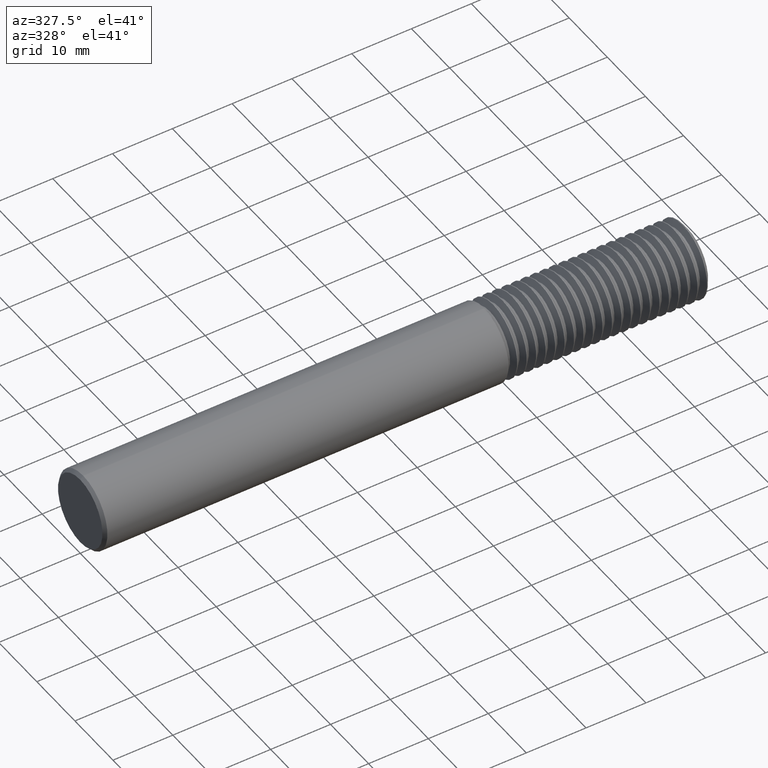
[diagram: clean part render]
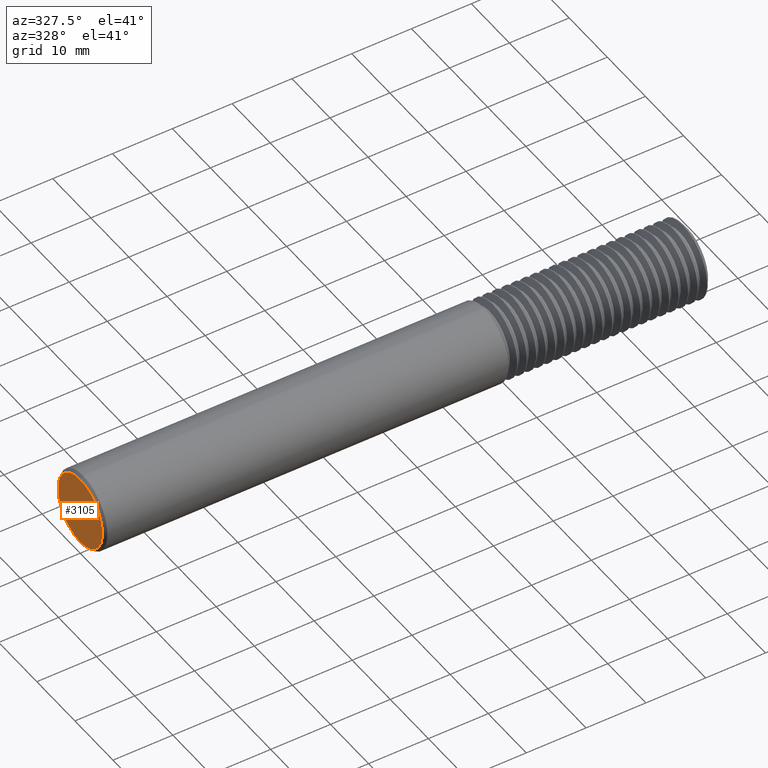
[diagram: same view with one face highlighted and labeled with its STEP entity id]
A machine part, auxiliary view. The second image highlights one B-rep face of the part: STEP entity #3105.
In plain terms, the highlighted planar face has unit normal (-1, 0, 0).
Its self-contained STEP definition (entity closure, byte-faithful):
#26 = CIRCLE ( 'NONE', #317, 0.2298500000000002763 ) ;
#48 = DIRECTION ( 'NONE',  ( -1.000000000000000000, 0.000000000000000000, 0.000000000000000000 ) ) ;
#104 = ORIENTED_EDGE ( 'NONE', *, *, #845, .T. ) ;
#317 = AXIS2_PLACEMENT_3D ( 'NONE', #3546, #48, #346 ) ;
#346 = DIRECTION ( 'NONE',  ( 0.000000000000000000, 0.000000000000000000, 1.000000000000000000 ) ) ;
#579 = CARTESIAN_POINT ( 'NONE',  ( 0.000000000000000000, 0.000000000000000000, -0.2298500000000002763 ) ) ;
#616 = ORIENTED_EDGE ( 'NONE', *, *, #2870, .T. ) ;
#689 = CIRCLE ( 'NONE', #916, 0.2298500000000002763 ) ;
#845 = EDGE_CURVE ( 'NONE', #2549, #1609, #26, .T. ) ;
#916 = AXIS2_PLACEMENT_3D ( 'NONE', #1987, #3848, #2051 ) ;
#1084 = DIRECTION ( 'NONE',  ( 0.000000000000000000, 0.000000000000000000, 1.000000000000000000 ) ) ;
#1609 = VERTEX_POINT ( 'NONE', #579 ) ;
#1722 = PLANE ( 'NONE',  #2932 ) ;
#1727 = CARTESIAN_POINT ( 'NONE',  ( 0.000000000000000000, 2.937315347754928730E-17, 0.2298500000000002763 ) ) ;
#1987 = CARTESIAN_POINT ( 'NONE',  ( 0.000000000000000000, 0.000000000000000000, 0.000000000000000000 ) ) ;
#2051 = DIRECTION ( 'NONE',  ( 0.000000000000000000, 0.000000000000000000, 1.000000000000000000 ) ) ;
#2118 = CARTESIAN_POINT ( 'NONE',  ( 0.000000000000000000, 0.000000000000000000, 0.000000000000000000 ) ) ;
#2493 = FACE_OUTER_BOUND ( 'NONE', #3742, .T. ) ;
#2549 = VERTEX_POINT ( 'NONE', #1727 ) ;
#2870 = EDGE_CURVE ( 'NONE', #1609, #2549, #689, .T. ) ;
#2932 = AXIS2_PLACEMENT_3D ( 'NONE', #2118, #3920, #1084 ) ;
#3105 = ADVANCED_FACE ( 'NONE', ( #2493 ), #1722, .T. ) ;
#3546 = CARTESIAN_POINT ( 'NONE',  ( 0.000000000000000000, 0.000000000000000000, 0.000000000000000000 ) ) ;
#3742 = EDGE_LOOP ( 'NONE', ( #616, #104 ) ) ;
#3848 = DIRECTION ( 'NONE',  ( -1.000000000000000000, 0.000000000000000000, 0.000000000000000000 ) ) ;
#3920 = DIRECTION ( 'NONE',  ( -1.000000000000000000, 0.000000000000000000, 0.000000000000000000 ) ) ;